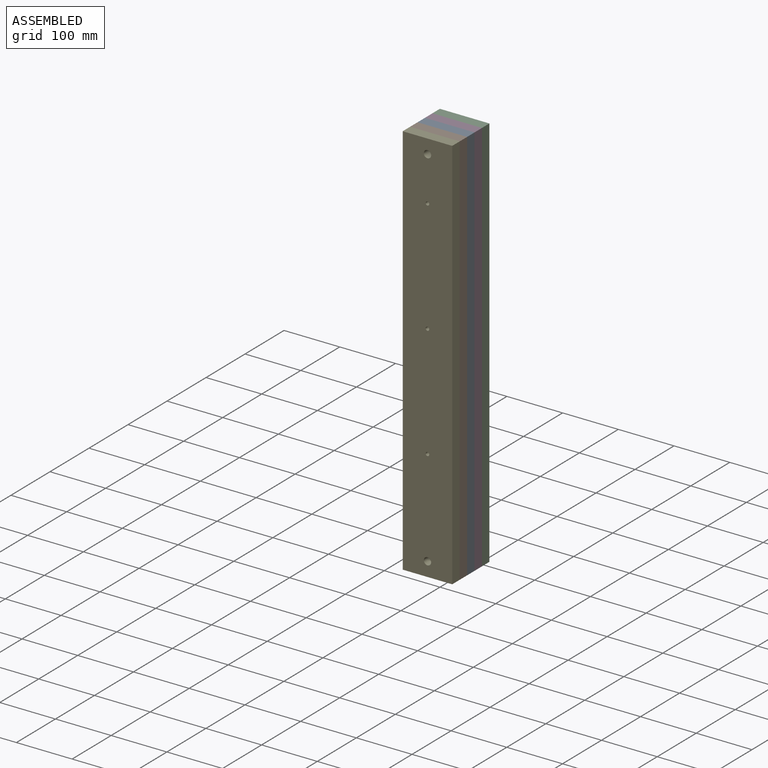
[diagram: assembled view]
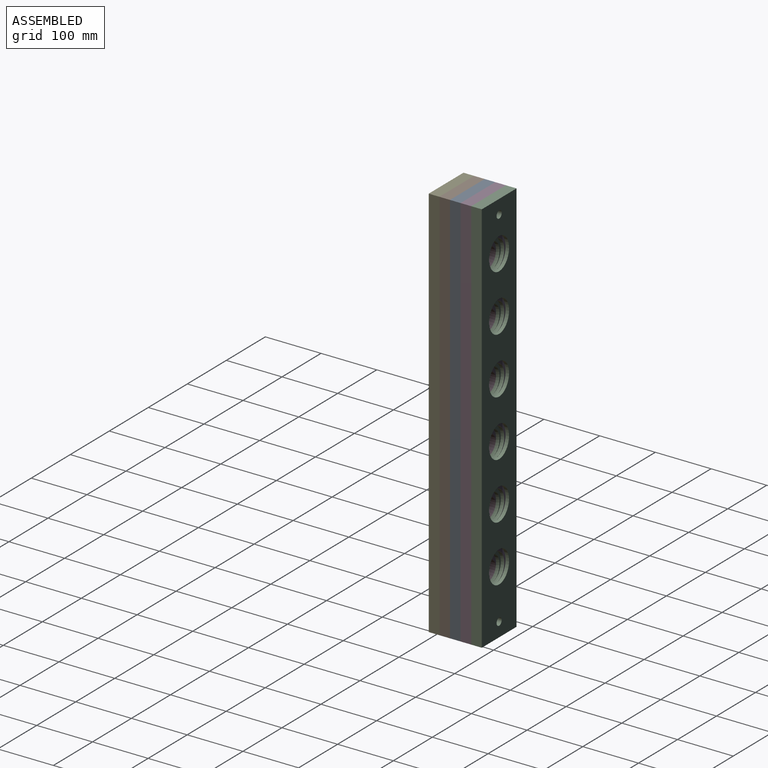
[diagram: assembled view, second angle]
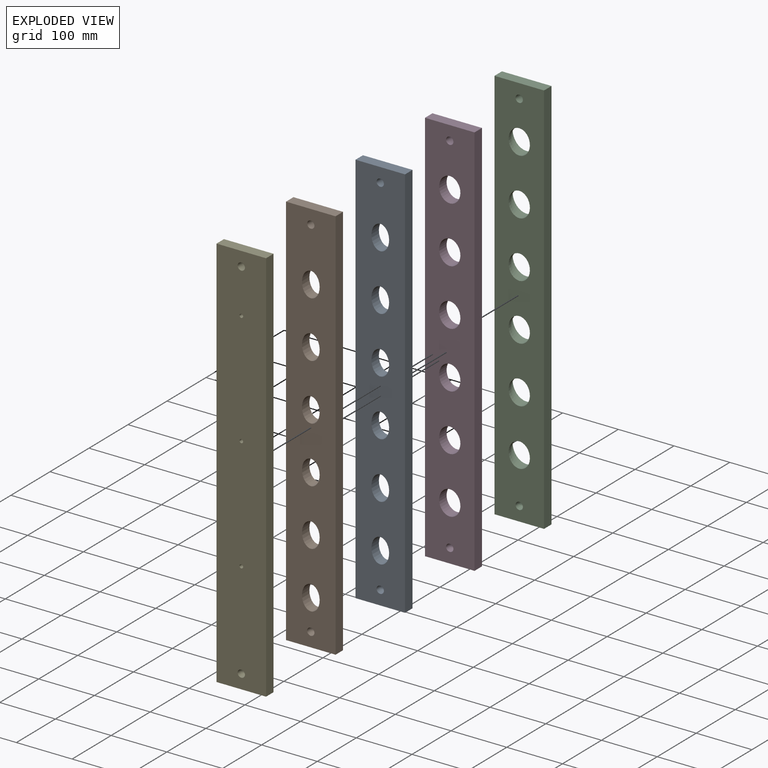
[diagram: exploded view]
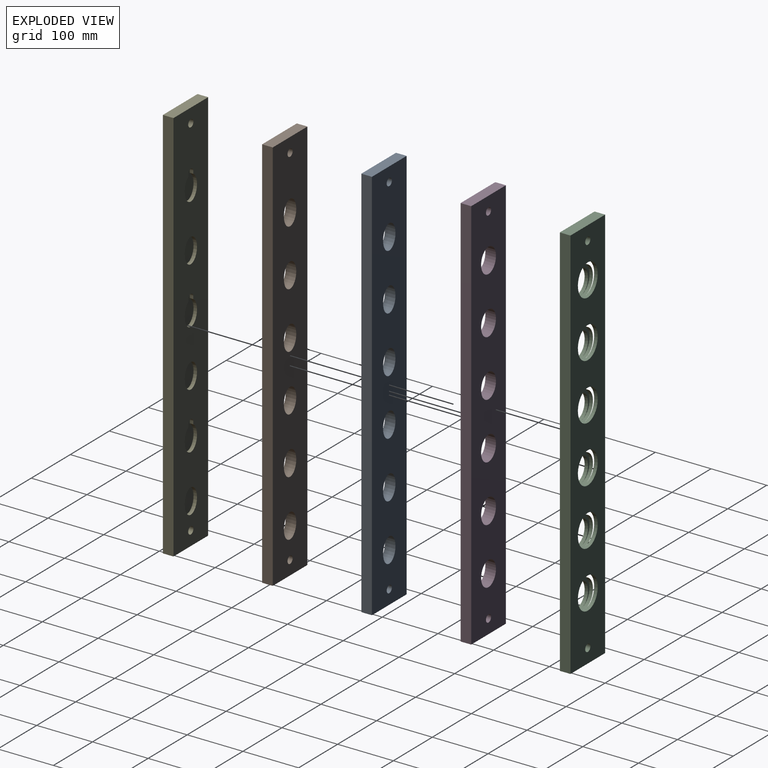
[diagram: exploded view, second angle]
ASSEMBLY  parts=5 mates=4
PART A: 14 faces, bbox 88.9x19.1x711.2 mm
  f0: plane 88.9x19.05mm, normal (0,0,1), area 1693.5mm2, adj f1,f9,f10,f11
  f1: plane 711.2x19.05mm, normal (-1,0,0), area 13548.4mm2, adj f0,f2,f10,f11
  f2: plane 88.9x19.05mm, normal (0,0,-1), area 1693.5mm2, adj f1,f9,f10,f11
  f3: extruded ~44.45x31.75mm, area 2296mm2, adj f10,f11
  f4: extruded ~44.45x31.75mm, area 2296mm2, adj f10,f11
  f5: extruded ~44.45x31.75mm, area 2296mm2, adj f10,f11
  f6: extruded ~44.45x31.75mm, area 2296mm2, adj f10,f11
  f7: extruded ~44.45x31.75mm, area 2296mm2, adj f10,f11
  f8: extruded ~44.45x31.75mm, area 2296mm2, adj f10,f11
  f9: plane 711.2x19.05mm, normal (1,0,0), area 13548.4mm2, adj f0,f2,f10,f11
  f10: plane 711.2x88.9mm, normal (0,-1,0), area 56301.1mm2, adj f0,f1,f2,f3,f4,f5,f6,f7
  f11: plane 711.2x88.9mm, normal (0,1,0), area 56301.1mm2, adj f0,f1,f2,f3,f4,f5,f6,f7
  f12: cylinder r=6.6mm len=19.05mm, axis (0,-1,0), area 790.5mm2, adj f10,f11
  f13: cylinder r=6.6mm len=19.05mm, axis (0,-1,0), area 790.5mm2, adj f10,f11
PART B: 14 faces, bbox 88.9x19.1x711.2 mm
  f0: plane 88.9x19.05mm, normal (0,0,1), area 1693.5mm2, adj f1,f9,f10,f11
  f1: plane 711.2x19.05mm, normal (-1,0,0), area 13548.4mm2, adj f0,f2,f10,f11
  f2: plane 88.9x19.05mm, normal (0,0,-1), area 1693.5mm2, adj f1,f9,f10,f11
  f3: extruded ~44.45x31.75mm, area 2296mm2, adj f10,f11
  f4: extruded ~44.45x31.75mm, area 2296mm2, adj f10,f11
  f5: extruded ~44.45x31.75mm, area 2296mm2, adj f10,f11
  f6: extruded ~44.45x31.75mm, area 2296mm2, adj f10,f11
  f7: extruded ~44.45x31.75mm, area 2296mm2, adj f10,f11
  f8: extruded ~44.45x31.75mm, area 2296mm2, adj f10,f11
  f9: plane 711.2x19.05mm, normal (1,0,0), area 13548.4mm2, adj f0,f2,f10,f11
  f10: plane 711.2x88.9mm, normal (0,-1,0), area 56301.1mm2, adj f0,f1,f2,f3,f4,f5,f6,f7
  f11: plane 711.2x88.9mm, normal (0,1,0), area 56301.1mm2, adj f0,f1,f2,f3,f4,f5,f6,f7
  f12: cylinder r=6.6mm len=19.05mm, axis (0,-1,0), area 790.5mm2, adj f10,f11
  f13: cylinder r=6.6mm len=19.05mm, axis (0,-1,0), area 790.5mm2, adj f10,f11
PART C: 38 faces, bbox 88.9x19.1x711.2 mm
  f0: extruded ~50.8x44.45mm, area 951.1mm2, adj f18,f34
  f1: extruded ~50.8x44.45mm, area 951.1mm2, adj f19,f32
  f2: extruded ~50.8x44.45mm, area 951.1mm2, adj f20,f30
  f3: extruded ~50.8x44.45mm, area 951.1mm2, adj f21,f28
  f4: extruded ~50.8x44.45mm, area 951.1mm2, adj f22,f26
  f5: extruded ~50.8x44.45mm, area 951.1mm2, adj f23,f24
  f6: extruded ~44.45x38.1mm, area 824.6mm2, adj f16,f23
  f7: extruded ~44.45x38.1mm, area 824.6mm2, adj f16,f22
  f8: extruded ~44.45x38.1mm, area 824.6mm2, adj f16,f21
  f9: extruded ~44.45x38.1mm, area 824.6mm2, adj f16,f20
  f10: extruded ~44.45x38.1mm, area 824.6mm2, adj f16,f19
  f11: extruded ~44.45x38.1mm, area 824.6mm2, adj f16,f18
  f12: plane 88.9x19.05mm, normal (0,0,1), area 1693.5mm2, adj f13,f15,f16,f17
  f13: plane 711.2x19.05mm, normal (-1,0,0), area 13548.4mm2, adj f12,f14,f16,f17
  f14: plane 88.9x19.05mm, normal (0,0,-1), area 1693.5mm2, adj f13,f15,f16,f17
  f15: plane 711.2x19.05mm, normal (1,0,0), area 13548.4mm2, adj f12,f14,f16,f17
  f16: plane 711.2x88.9mm, normal (0,-1,0), area 54971mm2, adj f6,f7,f8,f9,f10,f11,f12,f13
  f17: plane 711.2x88.9mm, normal (0,1,0), area 49270.6mm2, adj f12,f13,f14,f15,f25,f27,f29,f31
  f18: plane 50.8x44.45mm, normal (0,1,0), area 443.4mm2, adj f0,f11
  f19: plane 50.8x44.45mm, normal (0,1,0), area 443.4mm2, adj f1,f10
  f20: plane 50.8x44.45mm, normal (0,1,0), area 443.4mm2, adj f2,f9
  f21: plane 50.8x44.45mm, normal (0,1,0), area 443.4mm2, adj f3,f8
  f22: plane 50.8x44.45mm, normal (0,1,0), area 443.4mm2, adj f4,f7
  f23: plane 50.8x44.45mm, normal (0,1,0), area 443.4mm2, adj f5,f6
  f24: plane 57.15x50.8mm, normal (0,1,0), area 506.7mm2, adj f5,f25
  f25: extruded ~57.15x50.8mm, area 1077.7mm2, adj f17,f24
  f26: plane 57.15x50.8mm, normal (0,1,0), area 506.7mm2, adj f4,f27
  f27: extruded ~57.15x50.8mm, area 1077.7mm2, adj f17,f26
  f28: plane 57.15x50.8mm, normal (0,1,0), area 506.7mm2, adj f3,f29
  f29: extruded ~57.15x50.8mm, area 1077.7mm2, adj f17,f28
  f30: plane 57.15x50.8mm, normal (0,1,0), area 506.7mm2, adj f2,f31
  f31: extruded ~57.15x50.8mm, area 1077.7mm2, adj f17,f30
  f32: plane 57.15x50.8mm, normal (0,1,0), area 506.7mm2, adj f1,f33
  f33: extruded ~57.15x50.8mm, area 1077.7mm2, adj f17,f32
  f34: plane 57.15x50.8mm, normal (0,1,0), area 506.7mm2, adj f0,f35
  f35: extruded ~57.15x50.8mm, area 1077.7mm2, adj f17,f34
  f36: cylinder r=6.6mm len=19.05mm, axis (0,1,0), area 790.5mm2, adj f16,f17
  f37: cylinder r=6.6mm len=19.05mm, axis (0,1,0), area 790.5mm2, adj f16,f17
PART D: 14 faces, bbox 88.9x19.1x711.2 mm
  f0: plane 88.9x19.05mm, normal (0,0,1), area 1693.5mm2, adj f1,f9,f10,f11
  f1: plane 711.2x19.05mm, normal (-1,0,0), area 13548.4mm2, adj f0,f2,f10,f11
  f2: plane 88.9x19.05mm, normal (0,0,-1), area 1693.5mm2, adj f1,f9,f10,f11
  f3: extruded ~44.45x38.1mm, area 2473.9mm2, adj f10,f11
  f4: extruded ~44.45x38.1mm, area 2473.9mm2, adj f10,f11
  f5: extruded ~44.45x38.1mm, area 2473.9mm2, adj f10,f11
  f6: extruded ~44.45x38.1mm, area 2473.9mm2, adj f10,f11
  f7: extruded ~44.45x38.1mm, area 2473.9mm2, adj f10,f11
  f8: extruded ~44.45x38.1mm, area 2473.9mm2, adj f10,f11
  f9: plane 711.2x19.05mm, normal (1,0,0), area 13548.4mm2, adj f0,f2,f10,f11
  f10: plane 711.2x88.9mm, normal (0,-1,0), area 54971mm2, adj f0,f1,f2,f3,f4,f5,f6,f7
  f11: plane 711.2x88.9mm, normal (0,1,0), area 54971mm2, adj f0,f1,f2,f3,f4,f5,f6,f7
  f12: cylinder r=6.6mm len=19.05mm, axis (0,-1,0), area 790.5mm2, adj f10,f11
  f13: cylinder r=6.6mm len=19.05mm, axis (0,-1,0), area 790.5mm2, adj f10,f11
PART E: 32 faces, bbox 88.9x19.1x711.2 mm
  f0: extruded ~42.59x31.73mm, area 680.3mm2, adj f10,f11,f24,f26
  f1: plane 88.9x19.05mm, normal (0,0,1), area 1693.5mm2, adj f2,f9,f10,f17
  f2: plane 711.2x19.05mm, normal (-1,0,0), area 13548.4mm2, adj f1,f3,f10,f17
  f3: plane 88.9x19.05mm, normal (0,0,-1), area 1693.5mm2, adj f2,f9,f10,f17
  f4: extruded ~44.45x31.75mm, area 765.3mm2, adj f10,f12
  f5: extruded ~42.59x31.73mm, area 680.3mm2, adj f10,f13,f21,f22
  f6: extruded ~44.45x31.75mm, area 765.3mm2, adj f10,f14
  f7: extruded ~42.59x31.73mm, area 680.3mm2, adj f10,f15,f18,f19
  f8: extruded ~44.45x31.75mm, area 765.3mm2, adj f10,f16
  f9: plane 711.2x19.05mm, normal (1,0,0), area 13548.4mm2, adj f1,f3,f10,f17
  f10: plane 711.2x88.9mm, normal (0,1,0), area 55991.2mm2, adj f0,f1,f2,f3,f4,f5,f6,f7
  f11: plane 53.34x31.75mm, normal (0,1,0), area 1178.8mm2, adj f0,f24,f25,f26,f29
  f12: plane 44.45x31.75mm, normal (0,1,0), area 1108.4mm2, adj f4
  f13: plane 53.34x31.75mm, normal (0,1,0), area 1178.8mm2, adj f5,f21,f22,f23,f27
  f14: plane 44.45x31.75mm, normal (0,1,0), area 1108.4mm2, adj f6
  f15: plane 53.34x31.75mm, normal (0,1,0), area 1178.8mm2, adj f7,f18,f19,f20,f28
  f16: plane 44.45x31.75mm, normal (0,1,0), area 1108.4mm2, adj f8
  f17: plane 711.2x88.9mm, normal (0,-1,0), area 62852.8mm2, adj f1,f2,f3,f9,f27,f28,f29,f30
  f18: plane 6.35x4.4mm, normal (-1,0,0), area 27.9mm2, adj f7,f10,f15,f20
  f19: plane 6.35x4.4mm, normal (1,0,0), area 27.9mm2, adj f7,f10,f15,f20
  f20: cylinder r=6.35mm len=12.7mm, axis (0,1,0), area 126.7mm2, adj f10,f15,f18,f19
  f21: plane 6.35x4.4mm, normal (-1,0,0), area 27.9mm2, adj f5,f10,f13,f23
  f22: plane 6.35x4.4mm, normal (1,0,0), area 27.9mm2, adj f5,f10,f13,f23
  f23: cylinder r=6.35mm len=12.7mm, axis (0,1,0), area 126.7mm2, adj f10,f13,f21,f22
  f24: plane 6.35x4.4mm, normal (1,0,0), area 27.9mm2, adj f0,f10,f11,f25
  f25: cylinder r=6.35mm len=12.7mm, axis (0,1,0), area 126.7mm2, adj f10,f11,f24,f26
  f26: plane 6.35x4.4mm, normal (-1,0,0), area 27.9mm2, adj f0,f10,f11,f25
  f27: cylinder r=3.24mm len=12.7mm, axis (0,1,0), area 258.4mm2, adj f13,f17
  f28: cylinder r=3.24mm len=12.7mm, axis (0,1,0), area 258.4mm2, adj f15,f17
  f29: cylinder r=3.24mm len=12.7mm, axis (0,1,0), area 258.4mm2, adj f11,f17
  f30: cylinder r=6.6mm len=19.05mm, axis (0,1,0), area 790.5mm2, adj f10,f17
  f31: cylinder r=6.6mm len=19.05mm, axis (0,1,0), area 790.5mm2, adj f10,f17
PLACE A t=(-766.35,-543.53,-186.44)mm
PLACE B t=(-766.35,-562.58,-186.44)mm
PLACE C t=(-766.35,-505.43,-186.44)mm
PLACE D t=(-766.35,-524.48,-186.44)mm
PLACE E t=(-766.35,-581.63,-186.44)mm
MATE fastened D.f10 <-> A.f11  axis (0,-1,0) through (-721.9,-543.53,-186.44)mm
MATE fastened E.f10 <-> B.f10  axis (0,1,0) through (-677.45,-581.63,-542.04)mm
MATE fastened A.f10 <-> B.f11  axis (0,-1,0) through (-721.9,-562.58,-186.44)mm
MATE fastened D.f11 <-> C.f16  axis (0,1,0) through (-721.9,-524.48,-186.44)mm
